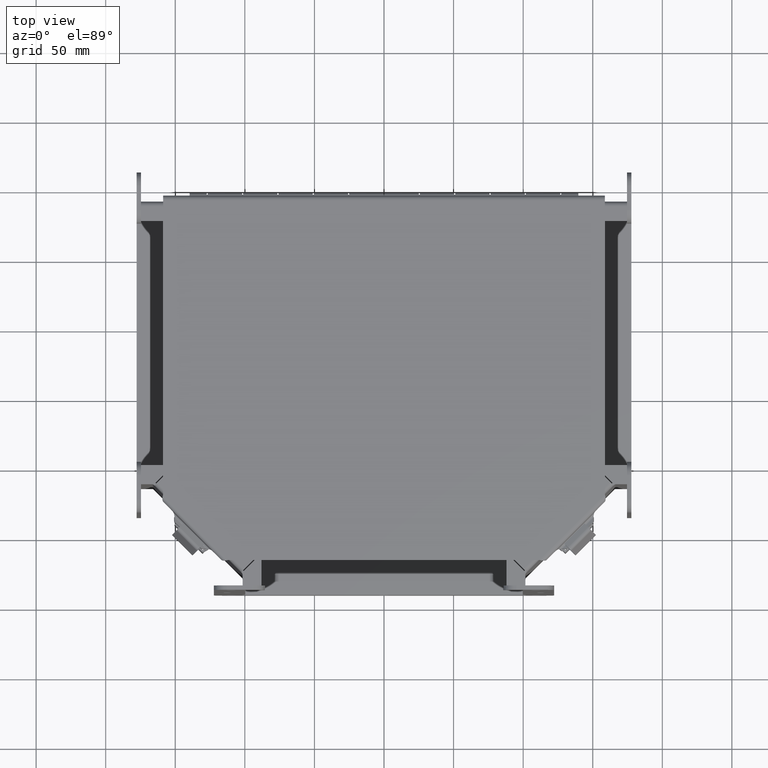
[diagram: clean part render]
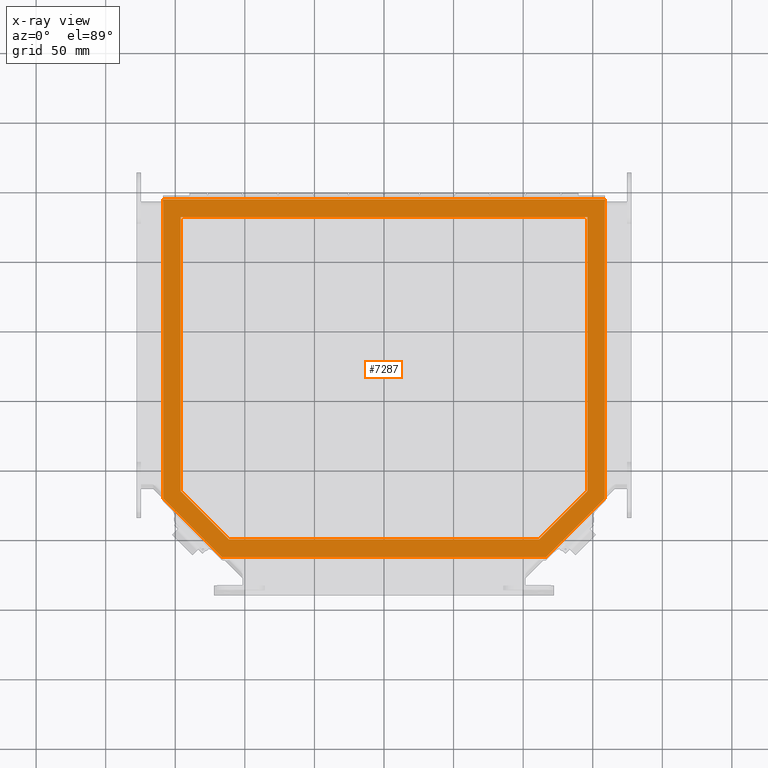
[diagram: x-ray — body ghosted, one internal face saturated and labeled with its STEP entity id]
A machine part, top view, then the same camera in x-ray: the body is ghosted and one INTERNAL B-rep face — a face not visible from any outside direction — is saturated and labeled: STEP entity #7287.
In plain terms, the highlighted planar face has unit normal (0, 0, -1).
Its self-contained STEP definition (entity closure, byte-faithful):
#207=FACE_BOUND('',#1385,.T.);
#533=PLANE('',#7894);
#904=FACE_OUTER_BOUND('',#1384,.T.);
#1384=EDGE_LOOP('',(#6436,#6437,#6438,#6439,#6440,#6441));
#1385=EDGE_LOOP('',(#6442,#6443,#6444,#6445,#6446,#6447));
#2290=LINE('',#12136,#3000);
#2294=LINE('',#12144,#3004);
#2297=LINE('',#12150,#3007);
#2300=LINE('',#12156,#3010);
#2303=LINE('',#12162,#3013);
#2306=LINE('',#12167,#3016);
#2308=LINE('',#12172,#3018);
#2312=LINE('',#12180,#3022);
#2315=LINE('',#12186,#3025);
#2318=LINE('',#12192,#3028);
#2321=LINE('',#12198,#3031);
#2324=LINE('',#12203,#3034);
#3000=VECTOR('',#9703,1.92807765030734);
#3004=VECTOR('',#9709,7.76164321881345);
#3007=VECTOR('',#9714,11.5);
#3010=VECTOR('',#9719,7.76164321881345);
#3013=VECTOR('',#9724,1.92807765030734);
#3016=VECTOR('',#9729,8.7732864376269);
#3018=VECTOR('',#9733,8.46875);
#3022=VECTOR('',#9739,2.34229121268044);
#3025=VECTOR('',#9744,9.1875);
#3028=VECTOR('',#9749,2.34229121268044);
#3031=VECTOR('',#9754,8.46875);
#3034=VECTOR('',#9759,12.5);
#3648=VERTEX_POINT('',#12134);
#3649=VERTEX_POINT('',#12135);
#3652=VERTEX_POINT('',#12143);
#3654=VERTEX_POINT('',#12149);
#3656=VERTEX_POINT('',#12155);
#3658=VERTEX_POINT('',#12161);
#3660=VERTEX_POINT('',#12170);
#3661=VERTEX_POINT('',#12171);
#3664=VERTEX_POINT('',#12179);
#3666=VERTEX_POINT('',#12185);
#3668=VERTEX_POINT('',#12191);
#3670=VERTEX_POINT('',#12197);
#4572=EDGE_CURVE('',#3648,#3649,#2290,.T.);
#4576=EDGE_CURVE('',#3649,#3652,#2294,.T.);
#4579=EDGE_CURVE('',#3652,#3654,#2297,.T.);
#4582=EDGE_CURVE('',#3654,#3656,#2300,.T.);
#4585=EDGE_CURVE('',#3656,#3658,#2303,.T.);
#4588=EDGE_CURVE('',#3658,#3648,#2306,.T.);
#4590=EDGE_CURVE('',#3660,#3661,#2308,.T.);
#4594=EDGE_CURVE('',#3664,#3660,#2312,.T.);
#4597=EDGE_CURVE('',#3666,#3664,#2315,.T.);
#4600=EDGE_CURVE('',#3668,#3666,#2318,.T.);
#4603=EDGE_CURVE('',#3670,#3668,#2321,.T.);
#4606=EDGE_CURVE('',#3661,#3670,#2324,.T.);
#6436=ORIENTED_EDGE('',*,*,#4606,.F.);
#6437=ORIENTED_EDGE('',*,*,#4590,.F.);
#6438=ORIENTED_EDGE('',*,*,#4594,.F.);
#6439=ORIENTED_EDGE('',*,*,#4597,.F.);
#6440=ORIENTED_EDGE('',*,*,#4600,.F.);
#6441=ORIENTED_EDGE('',*,*,#4603,.F.);
#6442=ORIENTED_EDGE('',*,*,#4582,.T.);
#6443=ORIENTED_EDGE('',*,*,#4585,.T.);
#6444=ORIENTED_EDGE('',*,*,#4588,.T.);
#6445=ORIENTED_EDGE('',*,*,#4572,.T.);
#6446=ORIENTED_EDGE('',*,*,#4576,.T.);
#6447=ORIENTED_EDGE('',*,*,#4579,.T.);
#7287=ADVANCED_FACE('',(#904,#207),#533,.F.);
#7894=AXIS2_PLACEMENT_3D('',#12206,#9763,#9764);
#9703=DIRECTION('',(-0.707106781186547,0.,-0.707106781186548));
#9709=DIRECTION('',(-1.,0.,9.01037404918187E-17));
#9714=DIRECTION('',(-6.0813311858961E-17,0.,1.));
#9719=DIRECTION('',(1.,0.,-9.01037404918186E-17));
#9724=DIRECTION('',(0.707106781186547,0.,-0.707106781186548));
#9729=DIRECTION('',(-1.59427847557482E-16,0.,-1.));
#9733=DIRECTION('',(-1.,0.,0.));
#9739=DIRECTION('',(-0.707106781186547,0.,-0.707106781186548));
#9744=DIRECTION('',(0.,0.,-1.));
#9749=DIRECTION('',(0.707106781186548,0.,-0.707106781186548));
#9754=DIRECTION('',(1.,0.,0.));
#9759=DIRECTION('',(0.,0.,1.));
#9763=DIRECTION('center_axis',(0.,1.,0.));
#9764=DIRECTION('ref_axis',(0.,0.,1.));
#12134=CARTESIAN_POINT('',(4.5625,0.,-4.38664321881345));
#12135=CARTESIAN_POINT('',(3.19914321881345,0.,-5.75));
#12136=CARTESIAN_POINT('',(3.77359416429118,1.09273919746571E-17,-5.17554905452227));
#12143=CARTESIAN_POINT('',(-4.5625,0.,-5.75));
#12144=CARTESIAN_POINT('',(-2.40777649963781,0.,-5.75));
#12149=CARTESIAN_POINT('',(-4.5625,0.,5.75));
#12150=CARTESIAN_POINT('',(-4.5625,0.,2.875));
#12155=CARTESIAN_POINT('',(3.19914321881345,0.,5.75));
#12156=CARTESIAN_POINT('',(1.47304510976891,0.,5.75));
#12161=CARTESIAN_POINT('',(4.5625,0.,4.38664321881345));
#12162=CARTESIAN_POINT('',(4.45527255488446,1.09273919746571E-17,4.49387066392899));
#12167=CARTESIAN_POINT('',(4.5625,0.,-2.19332160940673));
#12170=CARTESIAN_POINT('',(3.40625,0.,-6.25));
#12171=CARTESIAN_POINT('',(-5.0625,0.,-6.25));
#12172=CARTESIAN_POINT('',(5.0625,0.,-6.25));
#12179=CARTESIAN_POINT('',(5.0625,0.,-4.59375));
#12180=CARTESIAN_POINT('',(5.0625,0.,-4.59375));
#12185=CARTESIAN_POINT('',(5.0625,0.,4.59375));
#12186=CARTESIAN_POINT('',(5.0625,0.,6.25));
#12191=CARTESIAN_POINT('',(3.40625,0.,6.25));
#12192=CARTESIAN_POINT('',(3.40625,0.,6.25));
#12197=CARTESIAN_POINT('',(-5.0625,0.,6.25));
#12198=CARTESIAN_POINT('',(-5.0625,0.,6.25));
#12203=CARTESIAN_POINT('',(-5.0625,0.,-6.25));
#12206=CARTESIAN_POINT('Origin',(-0.253052999275627,0.,-3.05154669642843E-16));